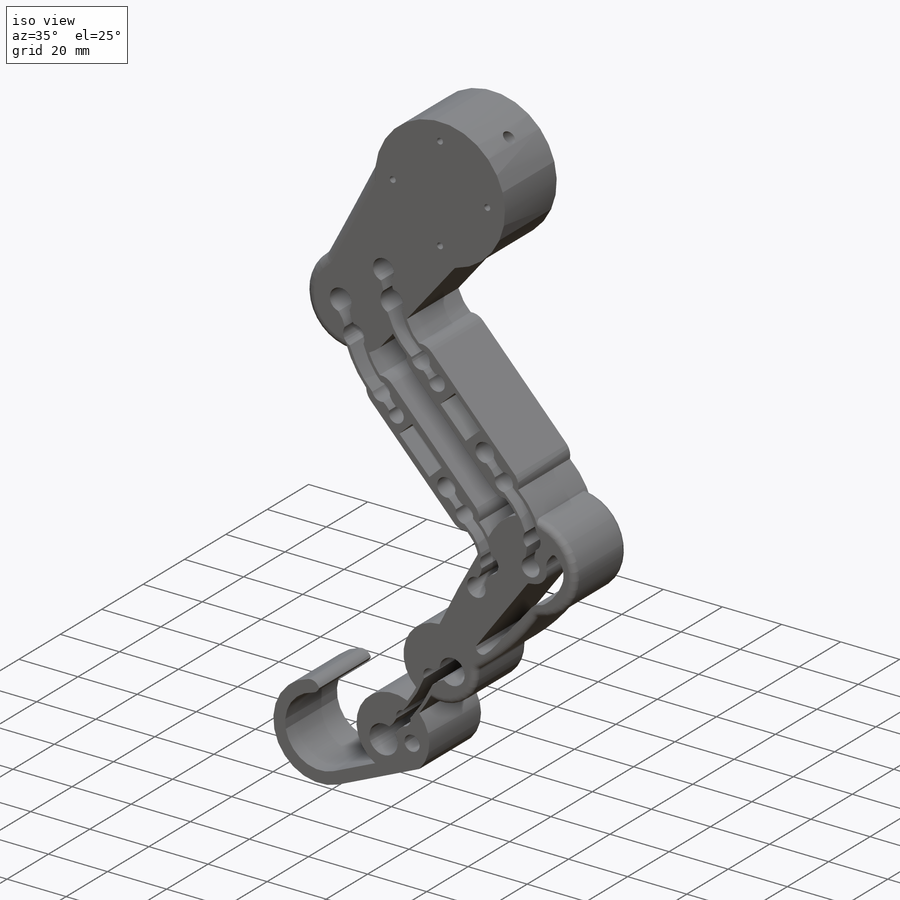
[diagram: iso view]
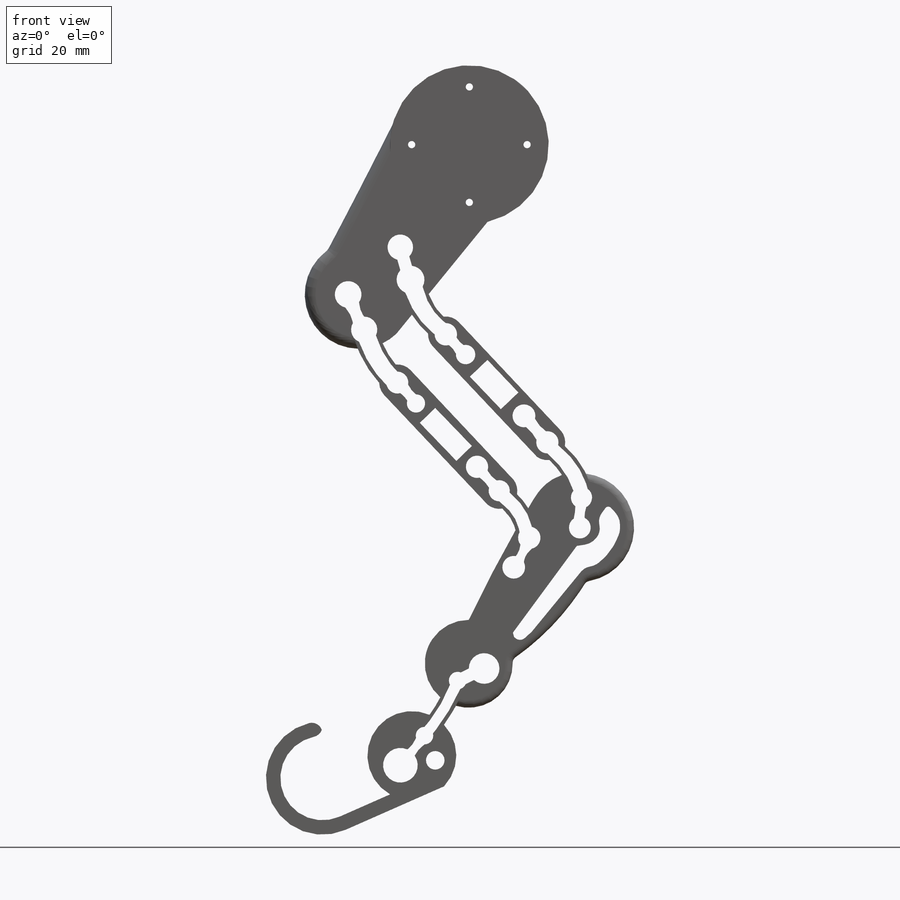
[diagram: front view]
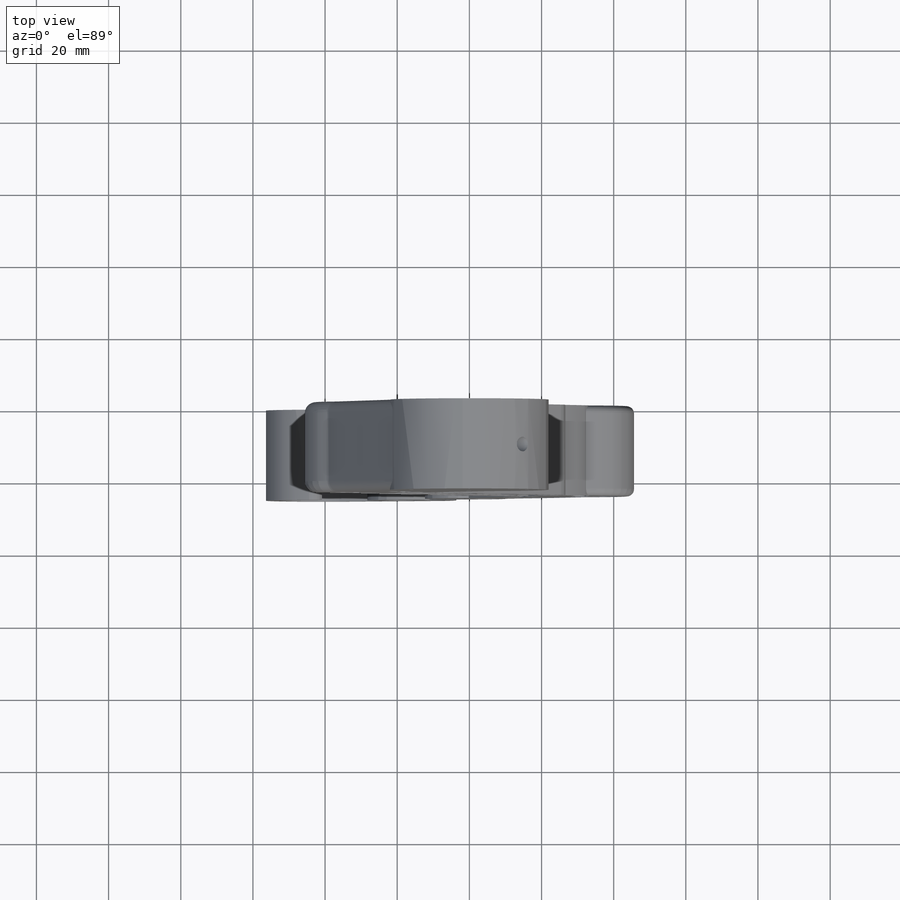
[diagram: top view]
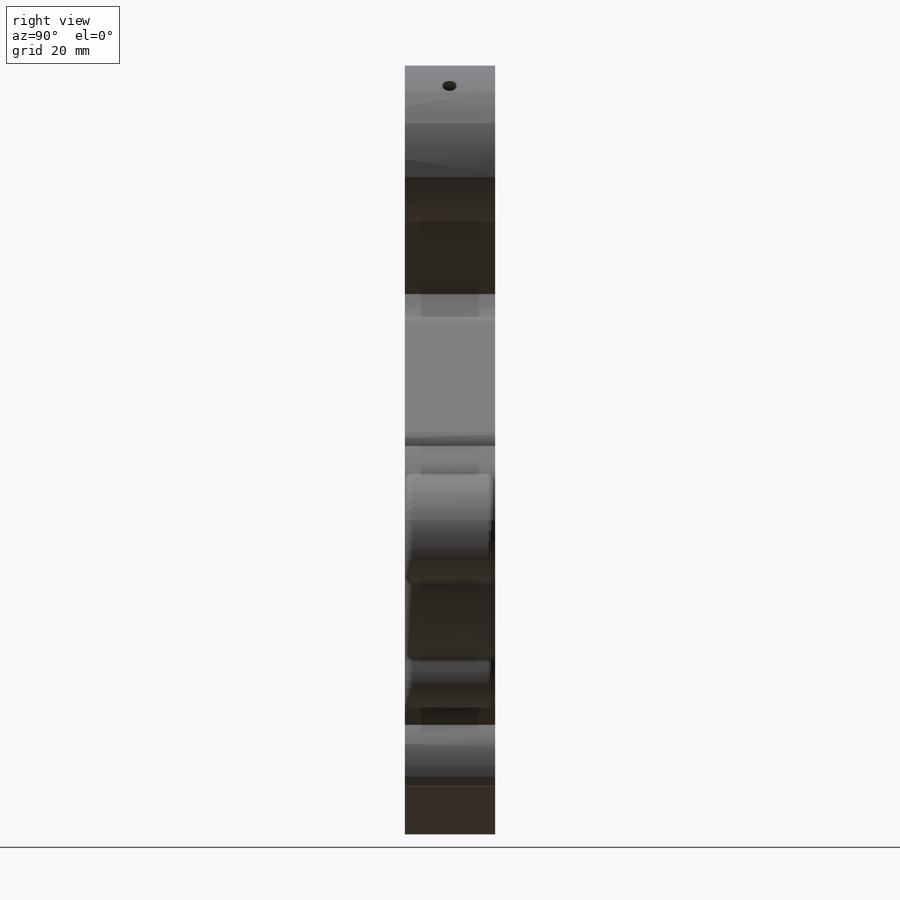
[diagram: right view]
SOLIDWORKS PART (.sldprt)
format: sldprt  version: not decoded by parser v0  size: 743,936 bytes
history: native  units: mm
features: sketch x7, plane x3, fillet x3, extrude x2, sweep x2, material x1 (+12 scaffold rows collapsed)
feature tree (30):
  scaffold x12  (default folders/planes/origin — collapsed)
  material  "Material <not specified>"
  sketch  "Sketch1"  dims[c1.D1=5.0mm c1.D2=5.0mm c1.D3=4.0mm c1.D4=4.0mm c1.D5=1.0mm c1.D6=5.0mm c1.D7=4.0mm c1.D8=3.0mm c1.D9=2.0mm c2.D1=~51.13918mm c3.D1=~175.296346deg]
  extrude  "Boss-Extrude1"  Depth=25mm
  sketch  "Sketch1<3>"  dims[D1=25.0mm D5=1.0mm D6=10.0mm D7=5.0mm]
  extrude  "Extrude-Thin2"  [1 undecoded]
  sketch  "Sketch1<4>"  dims[D1=25.0mm D5=4.0mm D6=10.0mm D7=5.0mm]
  plane  "Plane1"
  sketch  "Sketch2"  dims[D1=~1.571311mm]
  plane  "HolePlane"
  sketch  "Sketch4"  dims[D1=20.0mm]
  sweep  "Cut-Sweep1"
  plane  "Plane3"
  sketch  "Sketch5"  dims[D1=~2.630452mm]
  sketch  "Sketch6"  dims[D1=20.0mm D2=20.0mm]
  sweep  "Cut-Sweep2"
  fillet  "Fillet1"  Radius=3mm
  fillet  "Fillet3"  Radius=2mm
  fillet  "Fillet4"  Radius=3mm
decode coverage: 11 of 14 modeling features carry decoded parameters
note: ~ marks probable driven/reference dimensions
note: 1 parameter value undecoded
note: suppression state not decoded; provenance and decode notes live in map.json
